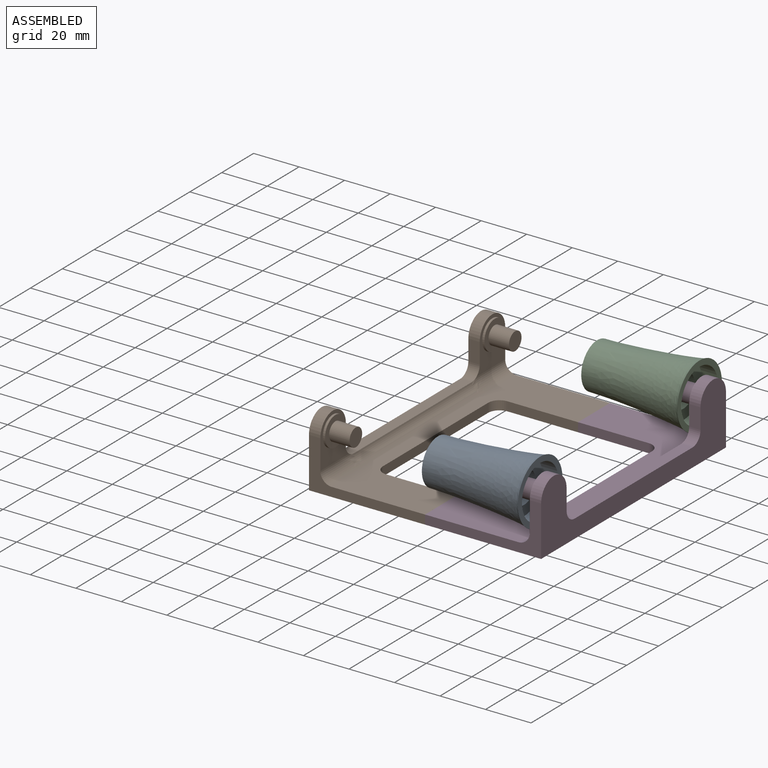
[diagram: assembled view]
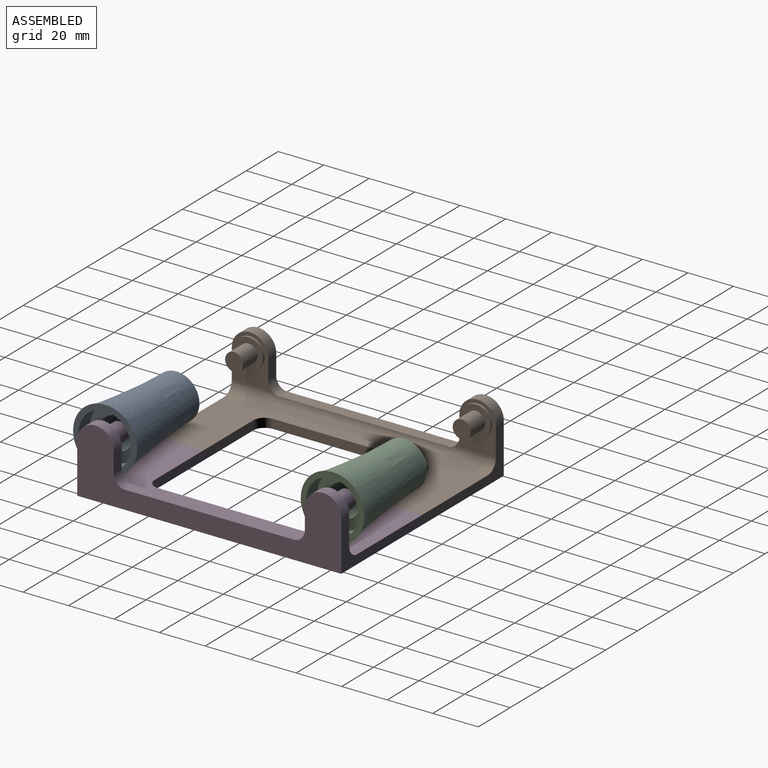
[diagram: assembled view, second angle]
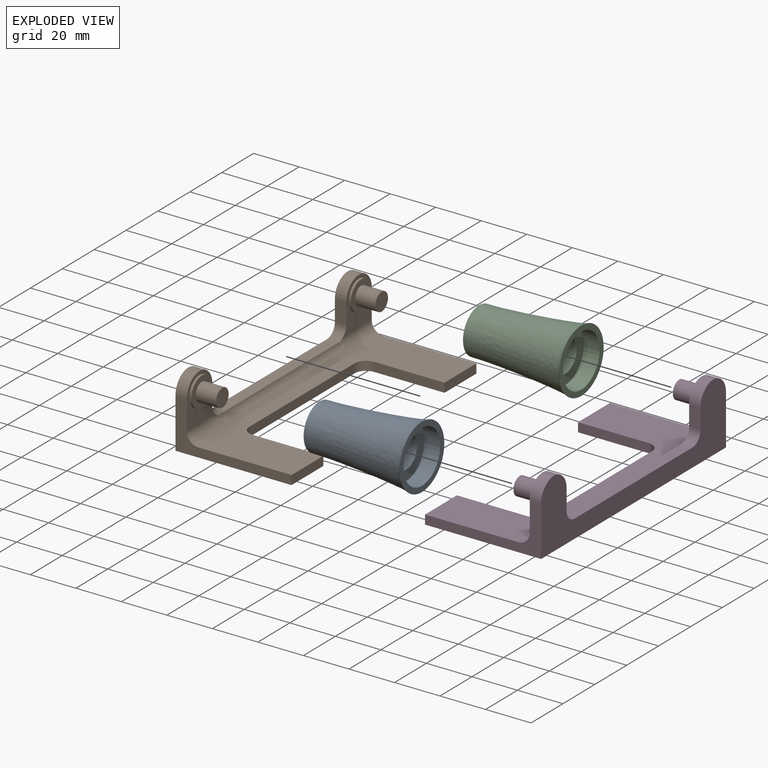
[diagram: exploded view]
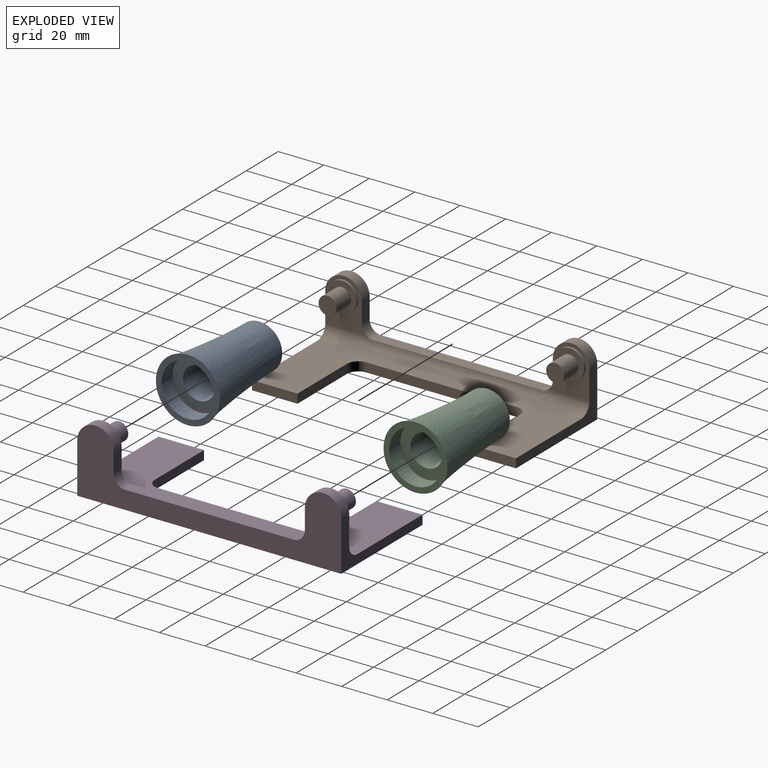
[diagram: exploded view, second angle]
ASSEMBLY  parts=4 mates=2
PART A: 6 faces, bbox 45x28x28 mm
  f0: cylinder r=7mm len=38mm, axis (1,0,0), area 1671.3mm2, adj f1,f4
  f1: plane 20x20mm, normal (-1,0,0), area 160.2mm2, adj f0,f3
  f2: plane 28x28mm, normal (1,0,0), area 200.3mm2, adj f3,f5
  f3: bspline ~45x28mm, area 3228.7mm2, adj f1,f2
  f4: plane 23x23mm, normal (1,0,0), area 261.5mm2, adj f0,f5
  f5: cylinder r=11.5mm len=23mm, axis (1,0,0), area 505.8mm2, adj f2,f4
PART B: 34 faces, bbox 51x116x30 mm
  f0: plane 21x18mm, normal (1,0,0), area 180.2mm2, adj f4,f5,f6,f11,f26,f33
  f1: plane 66x4mm, normal (1,0,0), area 264mm2, adj f19,f20,f27,f28
  f2: plane 9x5mm, normal (0,-1,0), area 45mm2, adj f8,f9,f10,f25
  f3: plane 74x5mm, normal (0,0,1), area 370mm2, adj f10,f25,f26,f31
  f4: plane 9x5mm, normal (0,1,0), area 45mm2, adj f0,f5,f10,f26
  f5: cylinder r=8mm len=16mm, axis (-1,0,0), area 125.7mm2, adj f0,f4,f6,f10
  f6: plane 51x22mm, normal (0,-1,0), area 299.4mm2, adj f0,f5,f10,f19,f20,f22,f33
  f7: plane 51x22mm, normal (0,1,0), area 299.4mm2, adj f8,f9,f10,f19,f20,f24,f29
  f8: cylinder r=8mm len=16mm, axis (-1,0,0), area 125.7mm2, adj f2,f7,f9,f10
  f9: plane 21x18mm, normal (1,0,0), area 180.2mm2, adj f2,f7,f8,f13,f25,f29
  f10: plane 116x30mm, normal (-1,0,0), area 1587.8mm2, adj f2,f3,f4,f5,f6,f7,f8,f20
  f11: cylinder r=6.45mm len=12.9mm, axis (-1,0,0), area 40.5mm2, adj f0,f12
  f12: plane 12.9x12.9mm, normal (1,0,0), area 81.7mm2, adj f11,f16
  f13: cylinder r=6.45mm len=12.9mm, axis (-1,0,0), area 40.5mm2, adj f9,f14
  f14: plane 12.9x12.9mm, normal (1,0,0), area 81.7mm2, adj f13,f18
  f15: plane 7.9x7.9mm, normal (1,0,0), area 49mm2, adj f16
  f16: cylinder r=3.95mm len=9mm, axis (-1,0,0), area 223.4mm2, adj f12,f15
  f17: plane 7.9x7.9mm, normal (1,0,0), area 49mm2, adj f18
  f18: cylinder r=3.95mm len=9mm, axis (-1,0,0), area 223.4mm2, adj f14,f17
  f19: plane 116x41.1mm, normal (0,0,1), area 2038.5mm2, adj f1,f6,f7,f21,f22,f23,f24,f27
  f20: plane 116x51mm, normal (0,0,-1), area 3190.7mm2, adj f1,f6,f7,f10,f21,f22,f23,f24
  f21: plane 31x4mm, normal (0,1,0), area 124mm2, adj f19,f20,f22,f28
  f22: plane 20x4mm, normal (1,0,0), area 80mm2, adj f6,f19,f20,f21
  f23: plane 31x4mm, normal (0,-1,0), area 124mm2, adj f19,f20,f24,f27
  f24: plane 20x4mm, normal (1,0,0), area 80mm2, adj f7,f19,f20,f23
  f25: cylinder r=5mm len=5mm, axis (1,0,0), area 39.3mm2, adj f2,f3,f9,f10,f30
  f26: cylinder r=5mm len=5mm, axis (-1,0,0), area 39.3mm2, adj f0,f3,f4,f10,f32
  f27: cylinder r=5mm len=5mm, axis (0,0,-1), area 31.4mm2, adj f1,f19,f20,f23
  f28: cylinder r=5mm len=5mm, axis (0,0,1), area 31.4mm2, adj f1,f19,f20,f21
  f29: cylinder r=5mm len=18mm, axis (0,-1,0), area 141.4mm2, adj f7,f9,f19,f30
  f30: bspline ~5.35x5.34mm, area 21.5mm2, adj f19,f25,f29,f31
  f31: cylinder r=5mm len=74mm, axis (0,1,0), area 506.7mm2, adj f3,f19,f30,f32
  f32: bspline ~5.43x5.43mm, area 21.5mm2, adj f19,f26,f31,f33
  f33: cylinder r=5mm len=18mm, axis (0,-1,0), area 141.4mm2, adj f0,f6,f19,f32
PART C: same geometry as A
PART D: same geometry as B
PLACE A t=(0,-100,0)mm
PLACE B t=(-96,-50,0)mm
PLACE C at identity
PLACE D rot(axis=(0,0,1),180deg) t=(6,-50,0)mm
MATE planar D.f11 <-> C.f0  axis (-1,0,0) through (0,0,0)mm
MATE planar A.f5 <-> D.f18  axis (1,0,0) through (0,-100,0)mm
